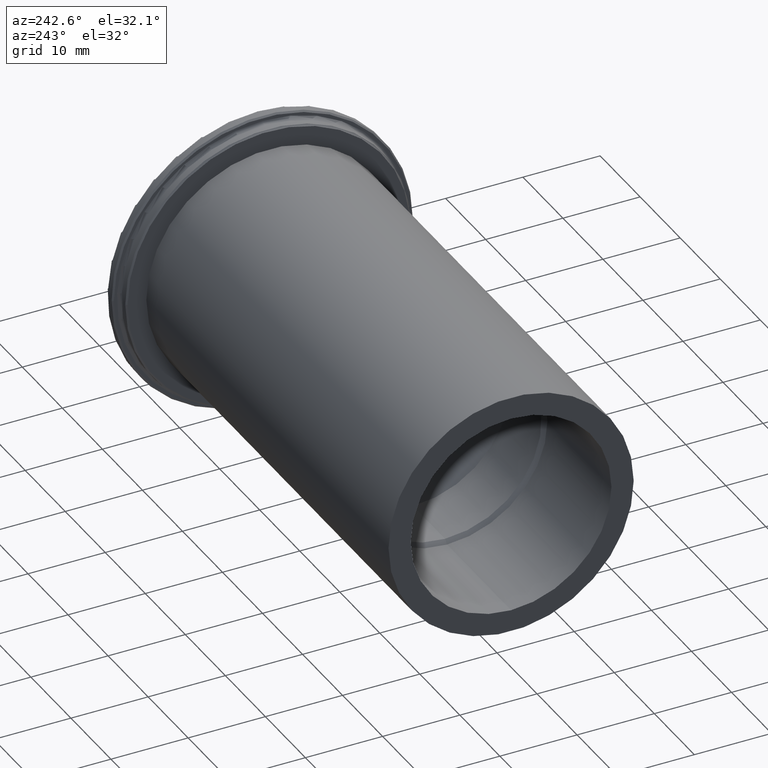
[diagram: clean part render]
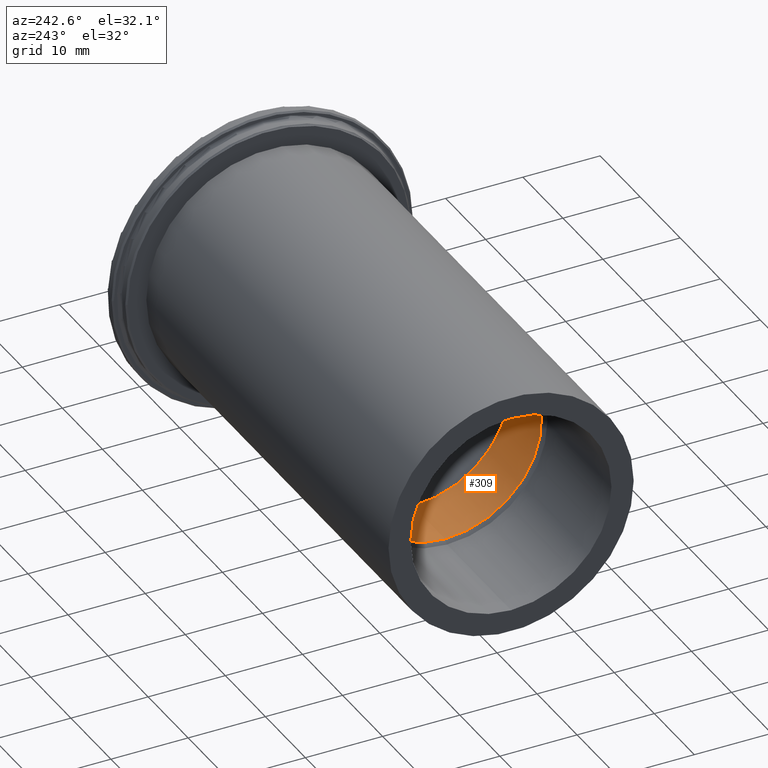
[diagram: same view with one face highlighted and labeled with its STEP entity id]
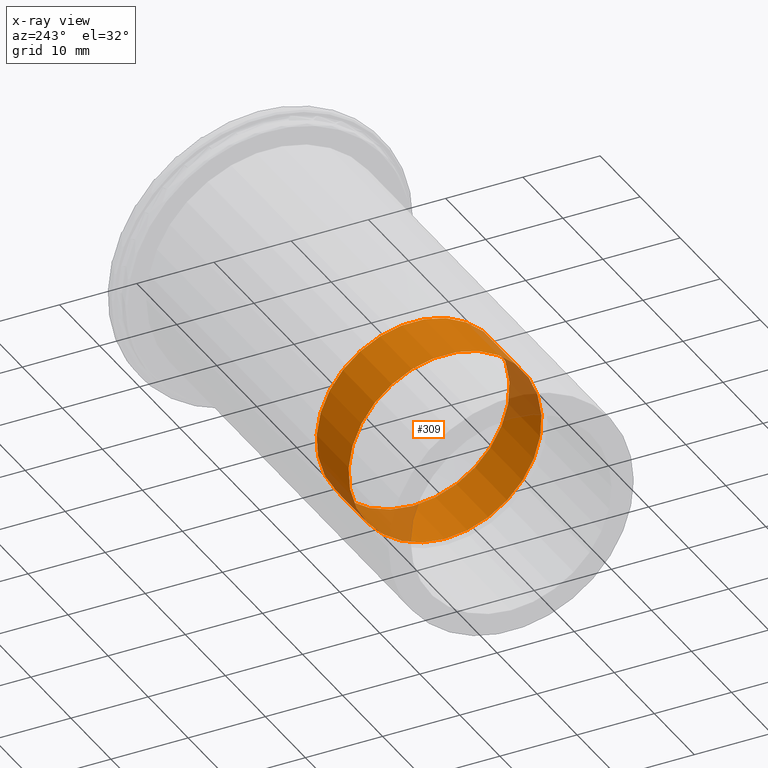
[diagram: x-ray of the same camera — body ghosted, the highlighted face saturated]
A machine part, auxiliary view. The second image highlights one B-rep face of the part: STEP entity #309.
The next image is the same camera in x-ray: the body ghosted, the highlighted face saturated — about 17% of this face is hidden behind the body in this view.
In plain terms, the highlighted cylindrical surface (bore or boss wall) has radius 12.5 mm, axis along (-1, 0, 0).
Its self-contained STEP definition (entity closure, byte-faithful):
#101=FACE_OUTER_BOUND('',#117,.T.);
#117=EDGE_LOOP('',(#245,#246,#247,#248));
#137=LINE('',#539,#147);
#147=VECTOR('',#421,12.5);
#158=CIRCLE('',#351,12.5);
#159=CIRCLE('',#353,12.5);
#184=VERTEX_POINT('',#533);
#185=VERTEX_POINT('',#537);
#206=EDGE_CURVE('',#184,#184,#158,.T.);
#208=EDGE_CURVE('',#185,#185,#159,.T.);
#209=EDGE_CURVE('',#185,#184,#137,.T.);
#245=ORIENTED_EDGE('',*,*,#208,.F.);
#246=ORIENTED_EDGE('',*,*,#209,.T.);
#247=ORIENTED_EDGE('',*,*,#206,.F.);
#248=ORIENTED_EDGE('',*,*,#209,.F.);
#302=CYLINDRICAL_SURFACE('',#352,12.5);
#309=ADVANCED_FACE('',(#101),#302,.F.);
#351=AXIS2_PLACEMENT_3D('',#534,#414,#415);
#352=AXIS2_PLACEMENT_3D('',#536,#417,#418);
#353=AXIS2_PLACEMENT_3D('',#538,#419,#420);
#414=DIRECTION('center_axis',(-1.,0.,0.));
#415=DIRECTION('ref_axis',(0.,0.,1.));
#417=DIRECTION('center_axis',(-1.,0.,0.));
#418=DIRECTION('ref_axis',(0.,0.,1.));
#419=DIRECTION('center_axis',(1.,0.,0.));
#420=DIRECTION('ref_axis',(0.,0.,1.));
#421=DIRECTION('',(1.,0.,0.));
#533=CARTESIAN_POINT('',(-39.,-1.53080849893419E-15,-12.5));
#534=CARTESIAN_POINT('Origin',(-39.,0.,0.));
#536=CARTESIAN_POINT('Origin',(-51.25,0.,0.));
#537=CARTESIAN_POINT('',(-47.,1.53080849893419E-15,-12.5));
#538=CARTESIAN_POINT('Origin',(-47.,0.,0.));
#539=CARTESIAN_POINT('',(-51.25,-1.53080849893419E-15,-12.5));